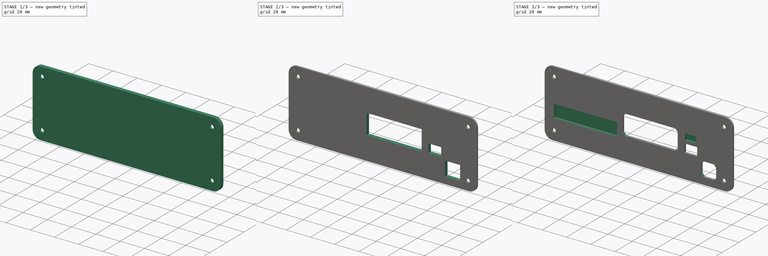
[diagram: build sequence overview — one tinted view per stage of 3, left to right]
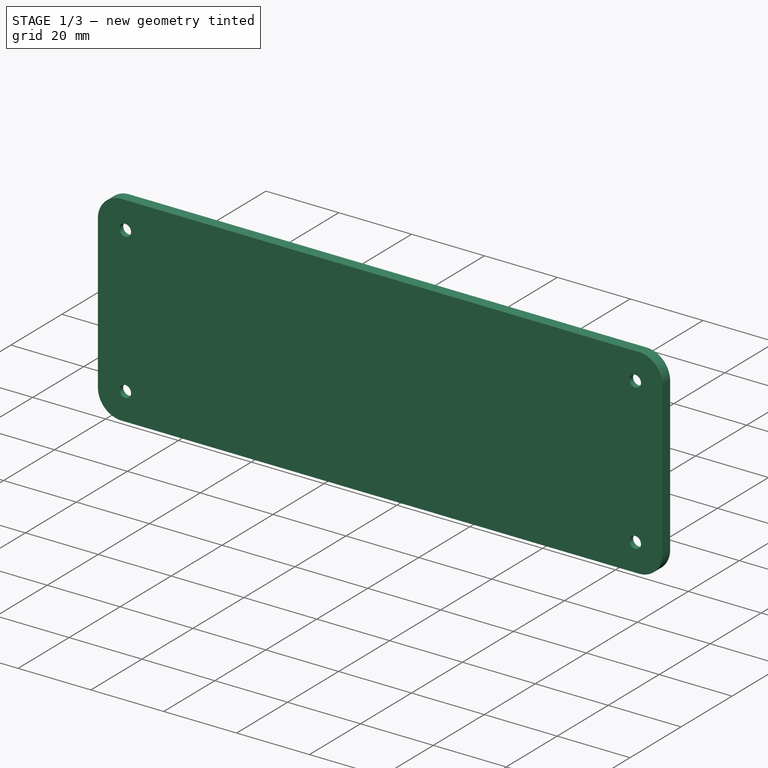
[diagram: stage 1 of 3 — iso view after this stage's code; geometry added in this stage tinted green]
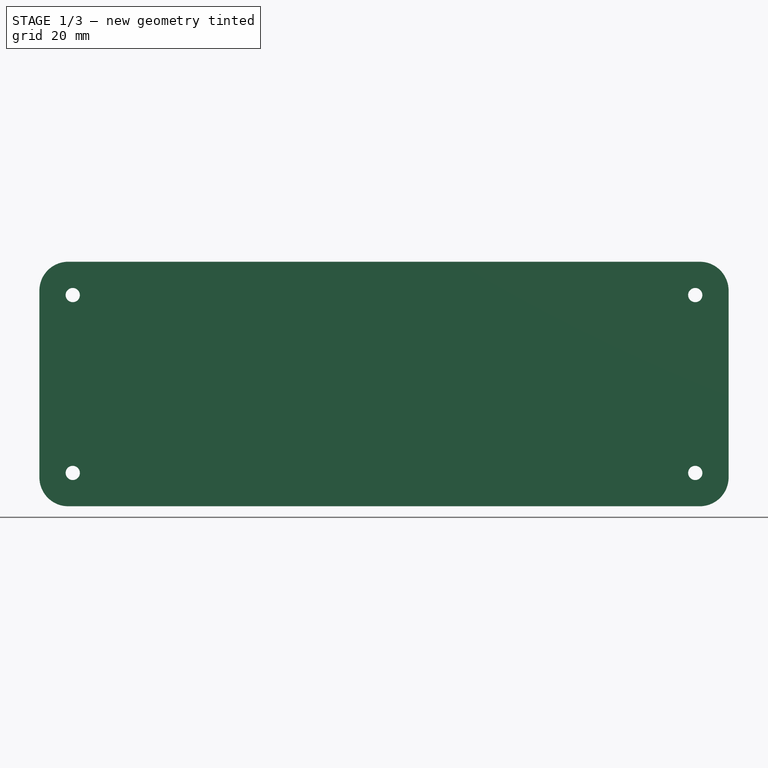
[diagram: stage 1 of 3 — front view after this stage's code; geometry added in this stage tinted green]
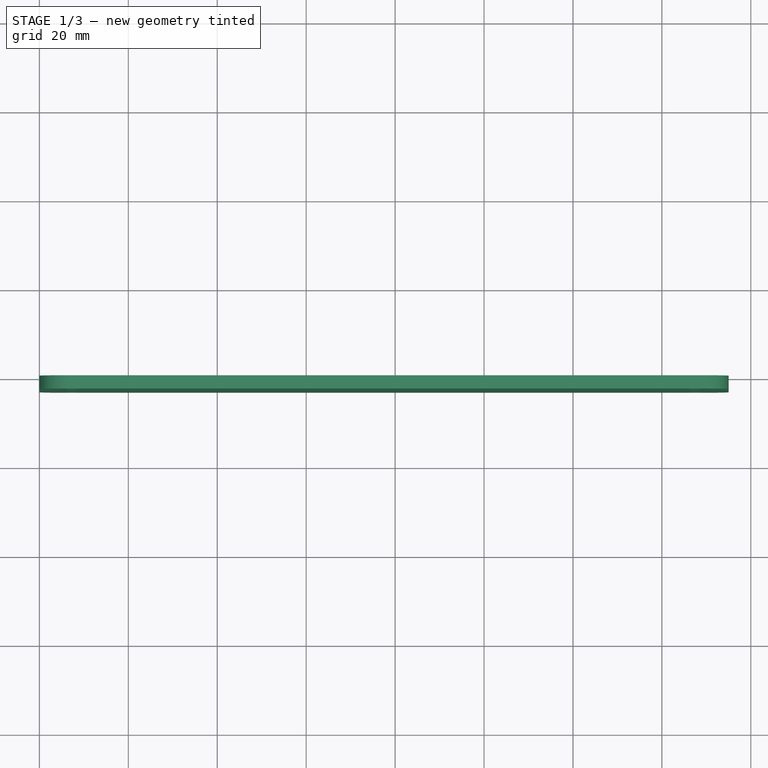
[diagram: stage 1 of 3 — top view after this stage's code; geometry added in this stage tinted green]
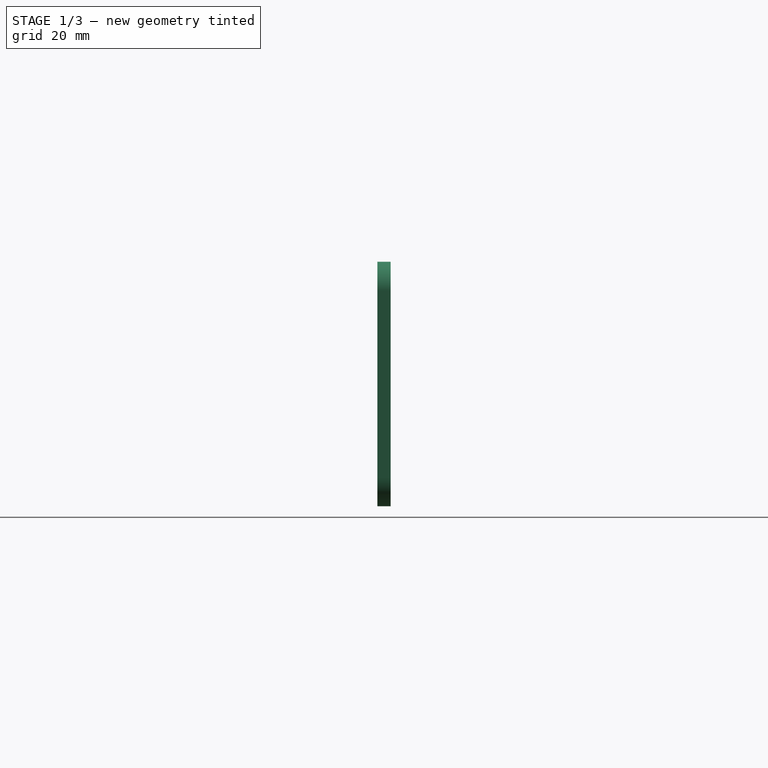
[diagram: stage 1 of 3 — right view after this stage's code; geometry added in this stage tinted green]
FCSTD DOCUMENT  (FreeCAD 0.19R24291 (Git))
Label: cover
License: All rights reserved
LicenseURL: http://en.wikipedia.org/wiki/All_rights_reserved
objects: PartDesign::Chamfer×4, Sketcher::SketchObject×3, PartDesign::Pocket×2, PartDesign::Pad×1, PartDesign::Fillet×1, PartDesign::Body×1
note: 20 computed .brp shape members not serialized (recipe doc carries the construction recipe); baked Part::Feature solids carry a one-line shape summary decoded from their .brp

FEATURE [Sketcher::SketchObject] Sketch
  FullyConstrained = true
  MapMode = 5
  Placement = pos=(0,0,0) rot=(1,0,0;1.5708rad)
  Support = -> [XZ_Plane]
  sketch-geometry (12):
    g0: LineSegment StartX=0 StartY=0 StartZ=0 EndX=155 EndY=0 EndZ=0
    g1: LineSegment StartX=155 StartY=0 StartZ=0 EndX=155 EndY=55 EndZ=0
    g2: LineSegment StartX=155 StartY=55 StartZ=0 EndX=0 EndY=55 EndZ=0
    g3: LineSegment StartX=0 StartY=55 StartZ=0 EndX=0 EndY=0 EndZ=0
    g4: LineSegment StartX=7.5 StartY=47.5 StartZ=0 EndX=147.5 EndY=47.5 EndZ=0
    g5: LineSegment StartX=147.5 StartY=47.5 StartZ=0 EndX=147.5 EndY=7.5 EndZ=0
    g6: LineSegment StartX=147.5 StartY=7.5 StartZ=0 EndX=7.5 EndY=7.5 EndZ=0
    g7: LineSegment StartX=7.5 StartY=7.5 StartZ=0 EndX=7.5 EndY=47.5 EndZ=0
    g8: Circle CenterX=7.5 CenterY=47.5 CenterZ=0 NormalX=0 NormalY=0 NormalZ=1 AngleXU=0 Radius=1.6
    g9: Circle CenterX=7.5 CenterY=7.5 CenterZ=0 NormalX=0 NormalY=0 NormalZ=1 AngleXU=0 Radius=1.6
    g10: Circle CenterX=147.5 CenterY=47.5 CenterZ=0 NormalX=0 NormalY=0 NormalZ=1 AngleXU=0 Radius=1.6
    g11: Circle CenterX=147.5 CenterY=7.5 CenterZ=0 NormalX=0 NormalY=0 NormalZ=1 AngleXU=0 Radius=1.6
  constraints (31):
    c: Coincident(g0,g1)
    c: Coincident(g1,g2)
    c: Coincident(g2,g3)
    c: Coincident(g3,g0)
    c: Horizontal(g0)
    c: Horizontal(g2)
    c: Vertical(g1)
    c: Vertical(g3)
    c: Coincident(g0,g-1)
    c: DistanceX(g2,g2) = 155
    c: DistanceY(g3,g3) = 55
    c: Coincident(g4,g5)
    c: Coincident(g5,g6)
    c: Coincident(g6,g7)
    c: Coincident(g7,g4)
    c: Horizontal(g4)
    c: Horizontal(g6)
    c: Vertical(g5)
    c: Vertical(g7)
    c: DistanceX(g4,g4) = 140
    c: DistanceY(g7,g7) = 40
    c: Coincident(g8,g4)
    c: Coincident(g9,g6)
    c: Coincident(g10,g4)
    c: Coincident(g11,g5)
    c: Diameter(g10) = 3.2
    c: Diameter(g11) = 3.2
    c: Diameter(g9) = 3.2
    c: Diameter(g8) = 3.2
    c: DistanceX(g0,g9) = 7.5
    c: DistanceY(g0,g9) = 7.5
FEATURE [PartDesign::Pad] Pad
  Direction = (1,1,1)
  Length = 3
  Length2 = 100
  Placement = pos=(0,0,0) rot=(1,0,0;1.5708rad)
  Profile = -> Sketch
  Type = 0
FEATURE [PartDesign::Fillet] Fillet
  Base = -> Pad [Edge5,Edge8,Edge2,Edge1]
  BaseFeature = -> Pad
  Placement = pos=(0,0,0) rot=(1,0,0;1.5708rad)
  Radius = 6.5
  SupportTransform = false
FEATURE [PartDesign::Chamfer] Chamfer
  Angle = 45
  Base = -> Fillet [Edge13,Edge12,Edge15,Edge14]
  BaseFeature = -> Fillet
  ChamferType = 0
  FlipDirection = false
  Placement = pos=(0,0,0) rot=(1,0,0;1.5708rad)
  Size = 1.5
  Size2 = 1
  SupportTransform = false
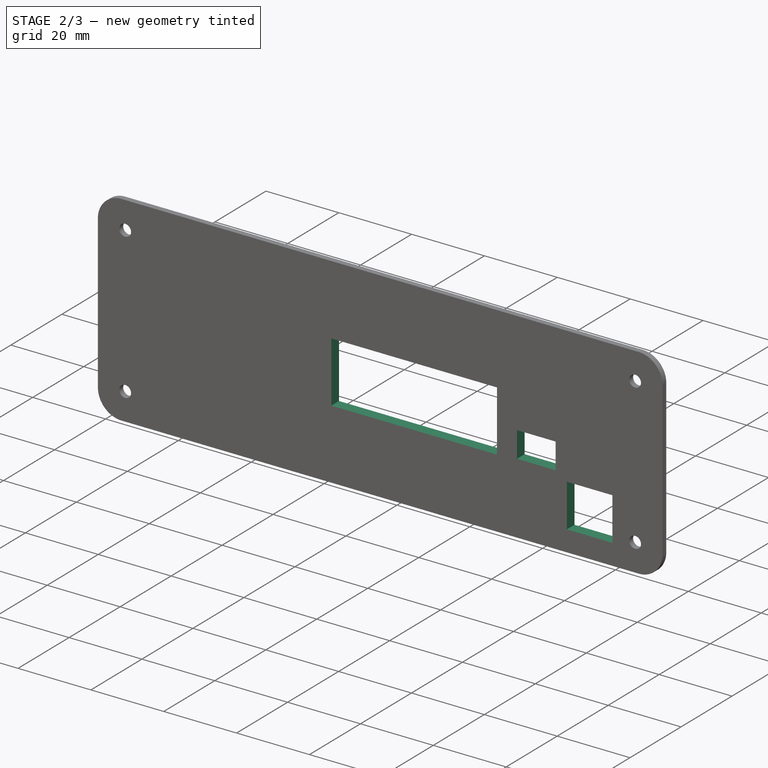
[diagram: stage 2 of 3 — iso view after this stage's code; geometry added in this stage tinted green]
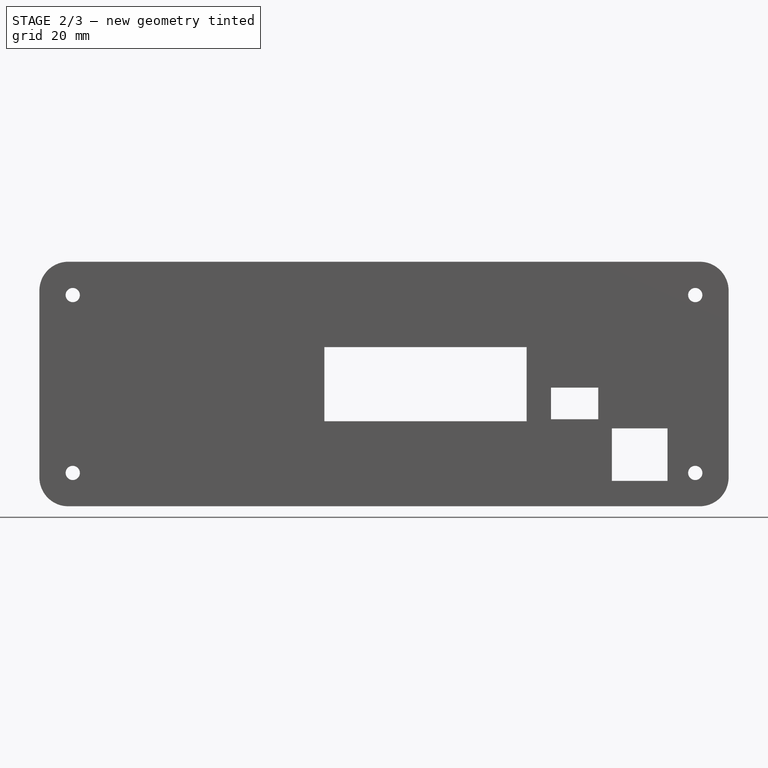
[diagram: stage 2 of 3 — front view after this stage's code; geometry added in this stage tinted green]
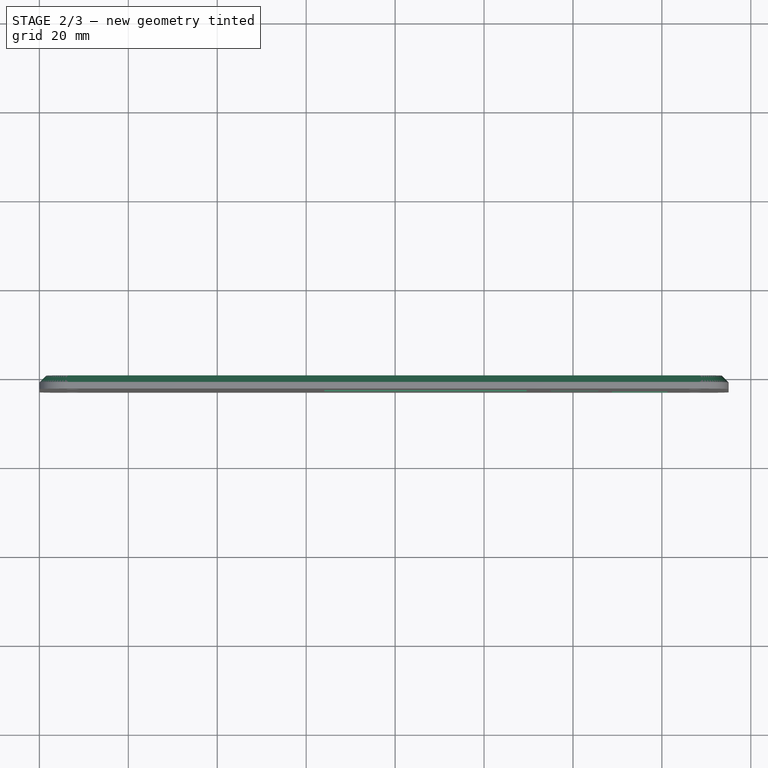
[diagram: stage 2 of 3 — top view after this stage's code; geometry added in this stage tinted green]
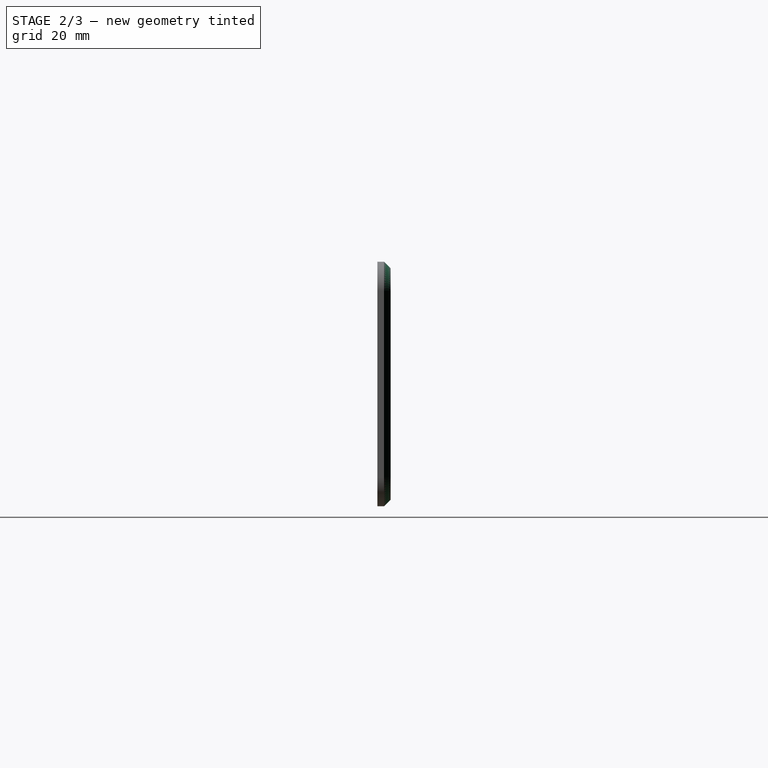
[diagram: stage 2 of 3 — right view after this stage's code; geometry added in this stage tinted green]
FEATURE [PartDesign::Chamfer] Chamfer001
  Angle = 45
  Base = -> Chamfer [Edge9]
  BaseFeature = -> Chamfer
  ChamferType = 0
  FlipDirection = false
  Placement = pos=(0,0,0) rot=(1,0,0;1.5708rad)
  Size = 1.5
  Size2 = 1
  SupportTransform = false
FEATURE [Sketcher::SketchObject] Sketch001
  FullyConstrained = false
  MapMode = 5
  Placement = pos=(0,0,0) rot=(1,0,0;1.5708rad)
  Support = -> [XZ_Plane]
  sketch-geometry (12):
    g0: LineSegment StartX=128.756 StartY=17.5244 StartZ=0 EndX=141.257 EndY=17.5244 EndZ=0
    g1: LineSegment StartX=141.257 StartY=17.5244 StartZ=0 EndX=141.257 EndY=5.70168 EndZ=0
    g2: LineSegment StartX=141.257 StartY=5.70168 StartZ=0 EndX=128.756 EndY=5.70168 EndZ=0
    g3: LineSegment StartX=128.756 StartY=5.70168 StartZ=0 EndX=128.756 EndY=17.5244 EndZ=0
    g4: LineSegment StartX=125.687 StartY=26.6763 StartZ=0 EndX=115.064 EndY=26.6763 EndZ=0
    g5: LineSegment StartX=115.064 StartY=26.6763 StartZ=0 EndX=115.064 EndY=19.5624 EndZ=0
    g6: LineSegment StartX=115.064 StartY=19.5624 StartZ=0 EndX=125.687 EndY=19.5624 EndZ=0
    g7: LineSegment StartX=125.687 StartY=19.5624 StartZ=0 EndX=125.687 EndY=26.6763 EndZ=0
    g8: LineSegment StartX=109.572 StartY=35.7989 StartZ=0 EndX=64.091 EndY=35.7989 EndZ=0
    g9: LineSegment StartX=64.091 StartY=35.7989 StartZ=0 EndX=64.091 EndY=19.1246 EndZ=0
    g10: LineSegment StartX=64.091 StartY=19.1246 StartZ=0 EndX=109.572 EndY=19.1246 EndZ=0
    g11: LineSegment StartX=109.572 StartY=19.1246 StartZ=0 EndX=109.572 EndY=35.7989 EndZ=0
  constraints (24):
    c: Coincident(g0,g1)
    c: Coincident(g1,g2)
    c: Coincident(g2,g3)
    c: Coincident(g3,g0)
    c: Horizontal(g0)
    c: Horizontal(g2)
    c: Vertical(g1)
    c: Vertical(g3)
    c: Coincident(g4,g5)
    c: Coincident(g5,g6)
    c: Coincident(g6,g7)
    c: Coincident(g7,g4)
    c: Horizontal(g4)
    c: Horizontal(g6)
    c: Vertical(g5)
    c: Vertical(g7)
    c: Coincident(g8,g9)
    c: Coincident(g9,g10)
    c: Coincident(g10,g11)
    c: Coincident(g11,g8)
    c: Horizontal(g8)
    c: Horizontal(g10)
    c: Vertical(g9)
    c: Vertical(g11)
FEATURE [PartDesign::Pocket] Pocket
  BaseFeature = -> Chamfer001
  Length = 5
  Length2 = 100
  Placement = pos=(0,0,0) rot=(1,0,0;1.5708rad)
  Profile = -> Sketch001
  Reversed = true
  Type = 0
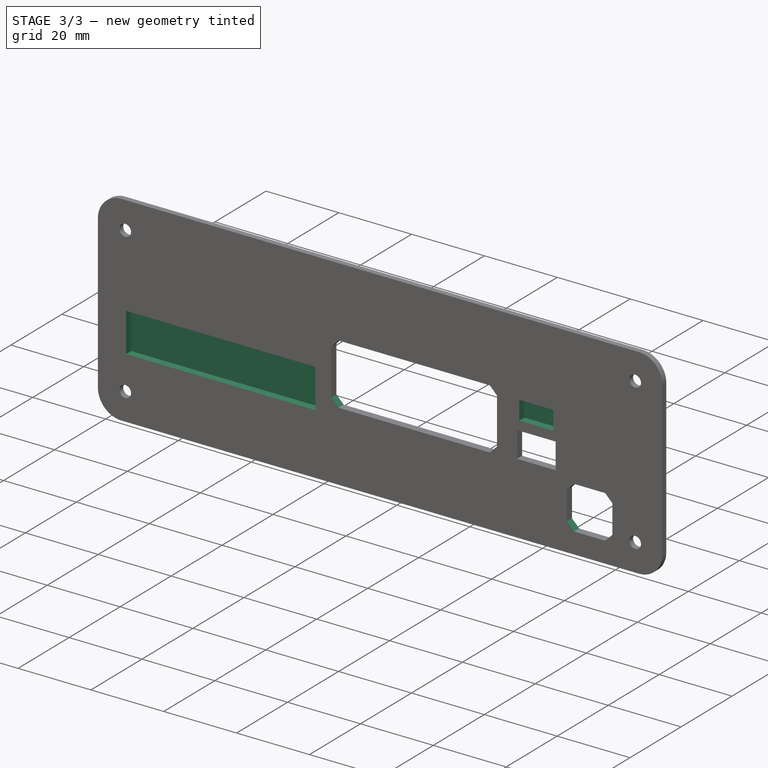
[diagram: stage 3 of 3 — iso view after this stage's code; geometry added in this stage tinted green]
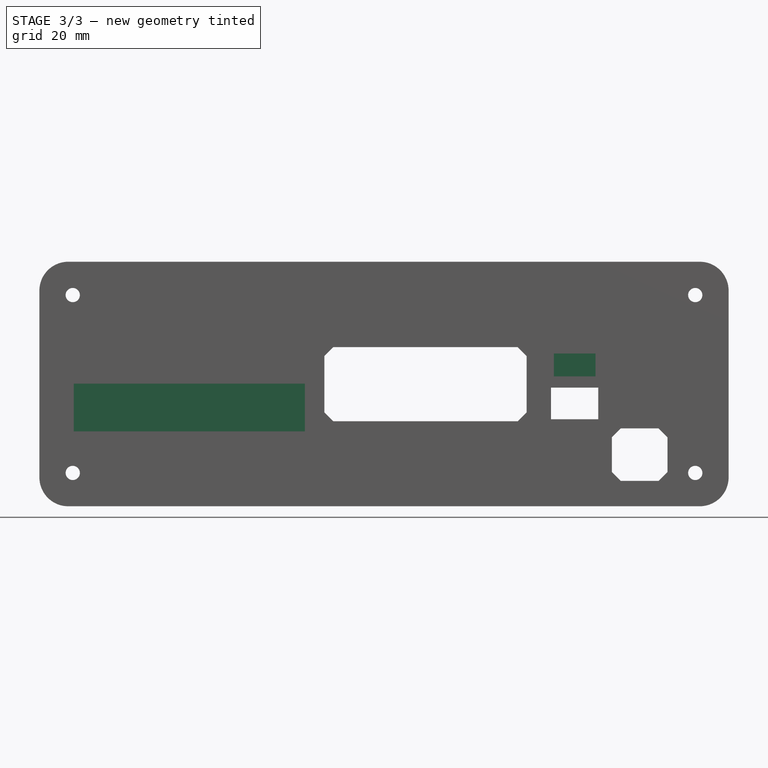
[diagram: stage 3 of 3 — front view after this stage's code; geometry added in this stage tinted green]
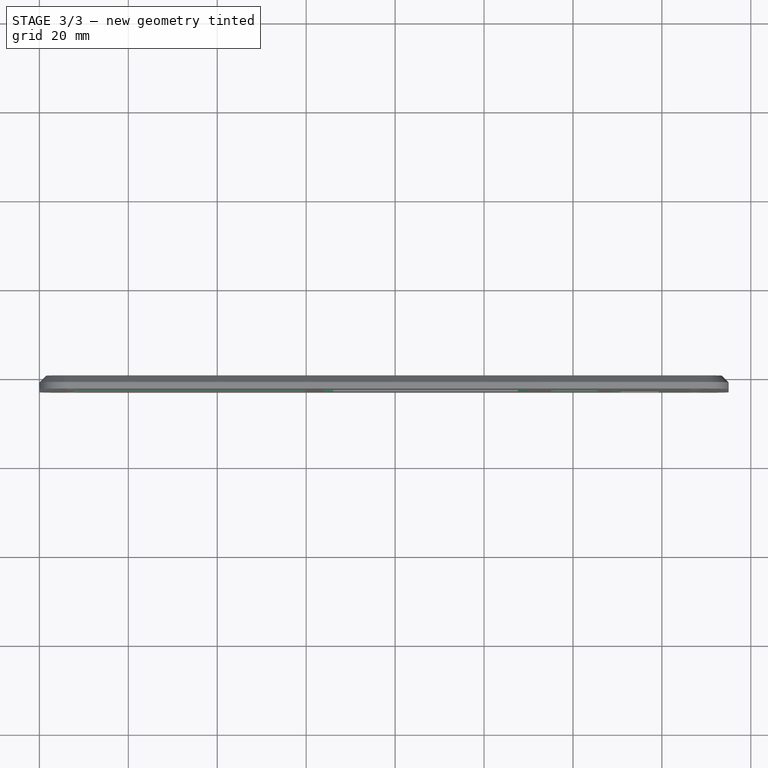
[diagram: stage 3 of 3 — top view after this stage's code; geometry added in this stage tinted green]
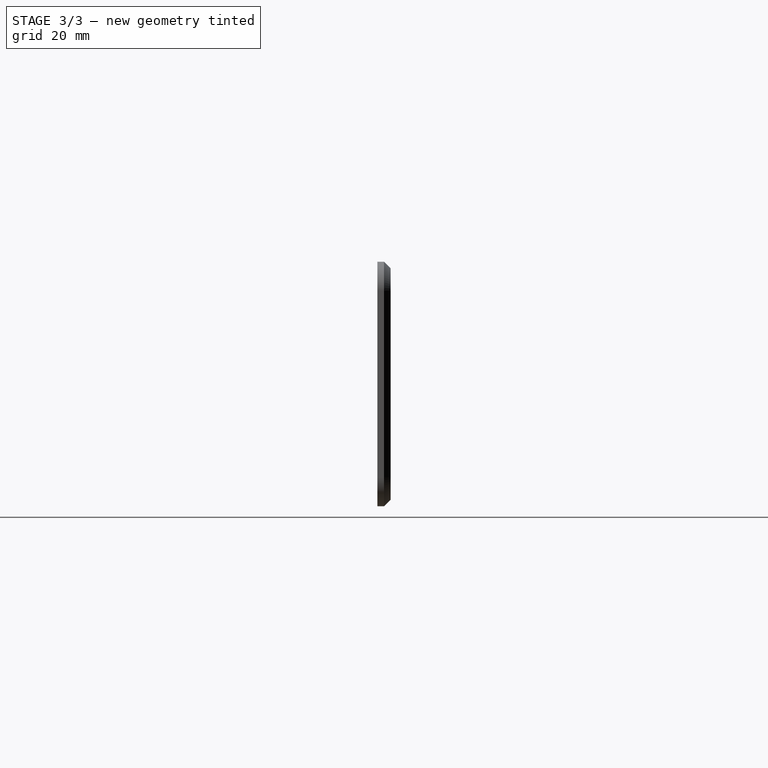
[diagram: stage 3 of 3 — right view after this stage's code; geometry added in this stage tinted green]
FEATURE [Sketcher::SketchObject] Sketch002
  FullyConstrained = false
  MapMode = 5
  Placement = pos=(0,-3,1.7e-15) rot=(1,0,0;1.5708rad)
  Support = -> [Pocket]
  sketch-geometry (8):
    g0: LineSegment StartX=7.71983 StartY=27.5853 StartZ=0 EndX=59.7004 EndY=27.5853 EndZ=0
    g1: LineSegment StartX=59.7004 StartY=27.5853 StartZ=0 EndX=59.7004 EndY=16.8339 EndZ=0
    g2: LineSegment StartX=59.7004 StartY=16.8339 StartZ=0 EndX=7.71983 EndY=16.8339 EndZ=0
    g3: LineSegment StartX=7.71983 StartY=16.8339 StartZ=0 EndX=7.71983 EndY=27.5853 EndZ=0
    g4: LineSegment StartX=115.7 StartY=34.3684 StartZ=0 EndX=125.06 EndY=34.3684 EndZ=0
    g5: LineSegment StartX=125.06 StartY=34.3684 StartZ=0 EndX=125.06 EndY=29.2029 EndZ=0
    g6: LineSegment StartX=125.06 StartY=29.2029 StartZ=0 EndX=115.7 EndY=29.2029 EndZ=0
    g7: LineSegment StartX=115.7 StartY=29.2029 StartZ=0 EndX=115.7 EndY=34.3684 EndZ=0
  constraints (16):
    c: Coincident(g0,g1)
    c: Coincident(g1,g2)
    c: Coincident(g2,g3)
    c: Coincident(g3,g0)
    c: Horizontal(g0)
    c: Horizontal(g2)
    c: Vertical(g1)
    c: Vertical(g3)
    c: Coincident(g4,g5)
    c: Coincident(g5,g6)
    c: Coincident(g6,g7)
    c: Coincident(g7,g4)
    c: Horizontal(g4)
    c: Horizontal(g6)
    c: Vertical(g5)
    c: Vertical(g7)
FEATURE [PartDesign::Pocket] Pocket001
  BaseFeature = -> Pocket
  Length = 2
  Length2 = 100
  Placement = pos=(0,0,0) rot=(1,0,0;1.5708rad)
  Profile = -> Sketch002
  Type = 0
FEATURE [PartDesign::Chamfer] Chamfer002
  Angle = 45
  Base = -> Pocket001 [Edge52,Edge67,Edge69,Edge49,Edge47,Edge63,Edge50,Edge65]
  BaseFeature = -> Pocket001
  ChamferType = 0
  FlipDirection = false
  Placement = pos=(0,0,0) rot=(1,0,0;1.5708rad)
  Size = 2
  Size2 = 1
  SupportTransform = false
FEATURE [PartDesign::Chamfer] Chamfer003
  Angle = 45
  Base = -> Chamfer002 [Edge28,Edge30,Edge32,Edge31,Edge29,Edge27,Edge26,Edge25,Edge23,Edge22,Edge21,Edge20,Edge4,Edge6,Edge8,Edge1,Edge5,Edge3,Edge7,Edge2]
  BaseFeature = -> Chamfer002
  ChamferType = 0
  FlipDirection = false
  Placement = pos=(0,0,0) rot=(1,0,0;1.5708rad)
  Size = 1
  Size2 = 1
  SupportTransform = false
FEATURE [PartDesign::Body] Body
  Group = -> [Sketch,Pad,Fillet,Chamfer,Chamfer001,Sketch001,Pocket,Sketch002,Pocket001,Chamfer002,Chamfer003]
  Origin = -> Origin
  Tip = -> Chamfer003
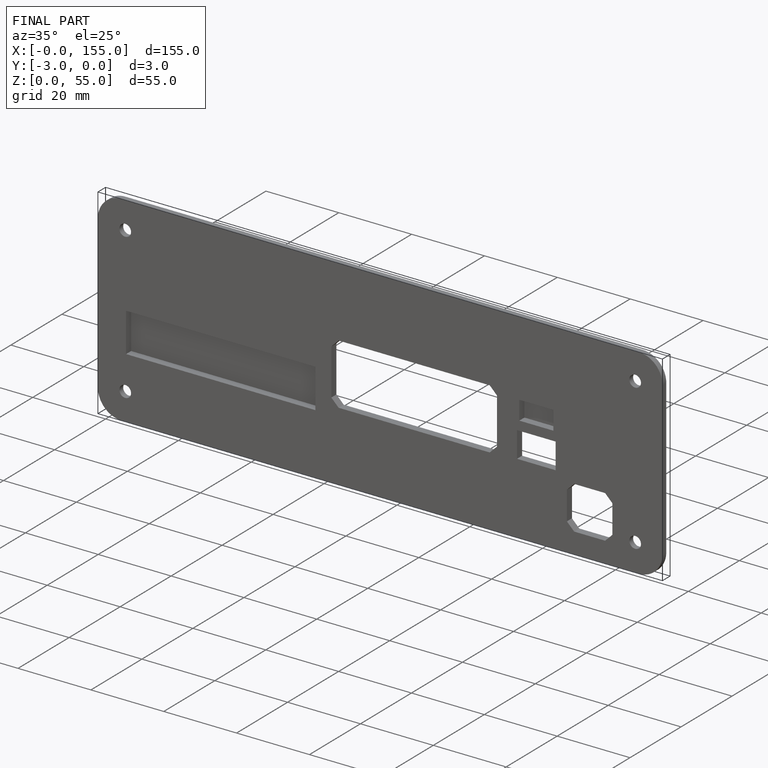
[diagram: finished part — iso view with bounding-box wireframe]
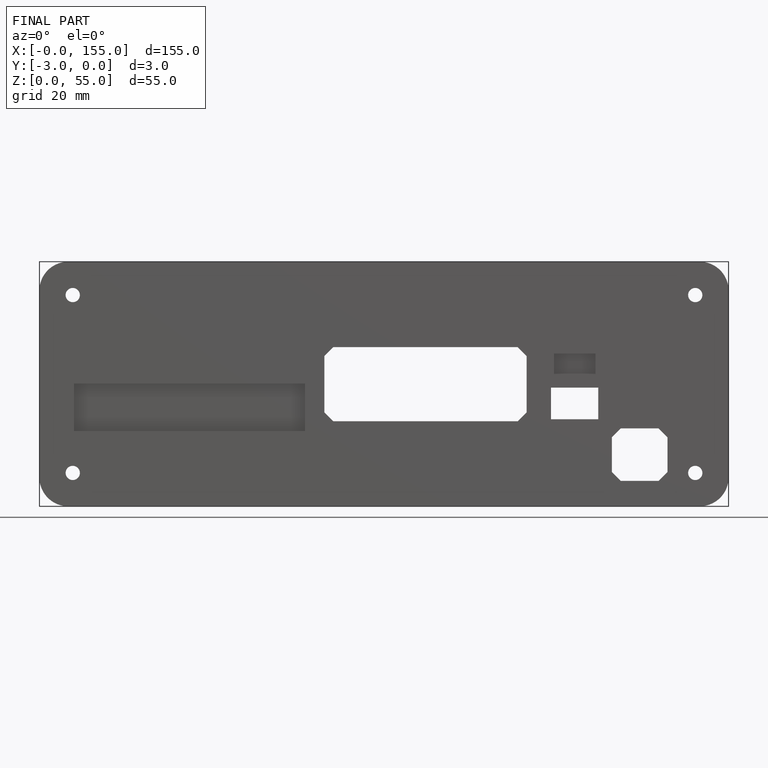
[diagram: finished part — front view with bounding-box wireframe]
